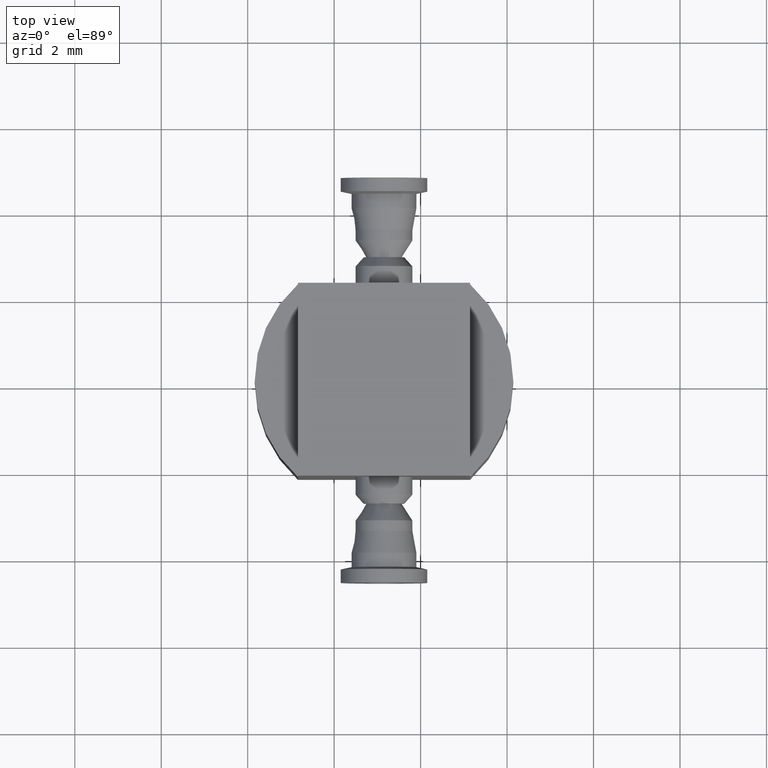
[diagram: clean part render]
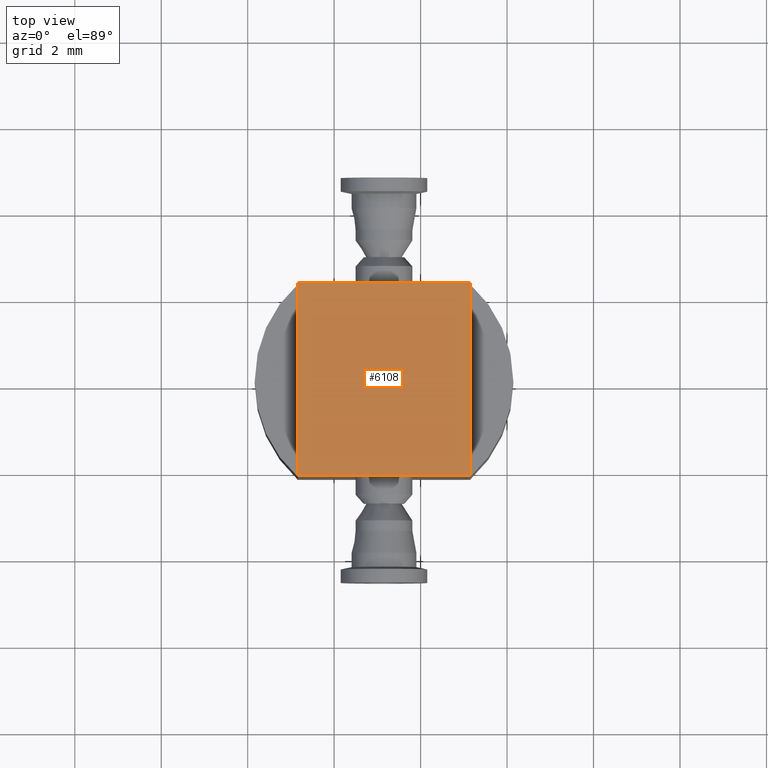
[diagram: same view with one face highlighted and labeled with its STEP entity id]
A machine part, top view. The second image highlights one B-rep face of the part: STEP entity #6108.
In plain terms, the highlighted planar face has unit normal (-0, 0, 1).
Its self-contained STEP definition (entity closure, byte-faithful):
#4220 = PLANE('',#4221);
#4221 = AXIS2_PLACEMENT_3D('',#4222,#4223,#4224);
#4222 = CARTESIAN_POINT('',(5.143106860388,3.108624468949E-15,
    11.578411163388));
#4223 = DIRECTION('',(1.,0.,0.));
#4224 = DIRECTION('',(-0.,1.,0.));
#4273 = PLANE('',#4274);
#4274 = AXIS2_PLACEMENT_3D('',#4275,#4276,#4277);
#4275 = CARTESIAN_POINT('',(1.163106860388,1.776356839398E-15,
    11.578411163388));
#4276 = DIRECTION('',(-1.,0.,0.));
#4277 = DIRECTION('',(0.,-1.,0.));
#5224 = PLANE('',#5225);
#5225 = AXIS2_PLACEMENT_3D('',#5226,#5227,#5228);
#5226 = CARTESIAN_POINT('',(3.153106860388,2.231591360442,
    11.578411163388));
#5227 = DIRECTION('',(-2.231604069598E-16,1.,0.));
#5228 = DIRECTION('',(1.,2.231604069598E-16,0.));
#5446 = PLANE('',#5447);
#5447 = AXIS2_PLACEMENT_3D('',#5448,#5449,#5450);
#5448 = CARTESIAN_POINT('',(3.153106860388,-2.231591360442,
    11.578411163388));
#5449 = DIRECTION('',(1.227382238279E-15,-1.,0.));
#5450 = DIRECTION('',(-1.,-1.227382238279E-15,0.));
#5899 = EDGE_CURVE('',#5900,#5902,#5904,.T.);
#5900 = VERTEX_POINT('',#5901);
#5901 = CARTESIAN_POINT('',(1.163106860388,-2.231591360442,
    13.458411163393));
#5902 = VERTEX_POINT('',#5903);
#5903 = CARTESIAN_POINT('',(1.163106860388,2.231591360442,
    13.458411163393));
#5904 = SURFACE_CURVE('',#5905,(#5909,#5916),.PCURVE_S1.);
#5905 = LINE('',#5906,#5907);
#5906 = CARTESIAN_POINT('',(1.163106860388,2.231591360442,
    13.458411163393));
#5907 = VECTOR('',#5908,1.);
#5908 = DIRECTION('',(0.,1.,0.));
#5909 = PCURVE('',#4273,#5910);
#5910 = DEFINITIONAL_REPRESENTATION('',(#5911),#5915);
#5911 = LINE('',#5912,#5913);
#5912 = CARTESIAN_POINT('',(-2.231591360442,1.880000000005));
#5913 = VECTOR('',#5914,1.);
#5914 = DIRECTION('',(-1.,0.));
#5915 = ( GEOMETRIC_REPRESENTATION_CONTEXT(2) 
PARAMETRIC_REPRESENTATION_CONTEXT() REPRESENTATION_CONTEXT('2D SPACE',''
  ) );
#5916 = PCURVE('',#5917,#5922);
#5917 = PLANE('',#5918);
#5918 = AXIS2_PLACEMENT_3D('',#5919,#5920,#5921);
#5919 = CARTESIAN_POINT('',(3.153106860388,2.664535259099E-15,
    13.458411163393));
#5920 = DIRECTION('',(-4.757069108965E-30,8.511356646873E-31,1.));
#5921 = DIRECTION('',(1.,0.,4.757069108965E-30));
#5922 = DEFINITIONAL_REPRESENTATION('',(#5923),#5927);
#5923 = LINE('',#5924,#5925);
#5924 = CARTESIAN_POINT('',(-1.99,2.231591360442));
#5925 = VECTOR('',#5926,1.);
#5926 = DIRECTION('',(0.,1.));
#5927 = ( GEOMETRIC_REPRESENTATION_CONTEXT(2) 
PARAMETRIC_REPRESENTATION_CONTEXT() REPRESENTATION_CONTEXT('2D SPACE',''
  ) );
#6012 = EDGE_CURVE('',#6013,#6015,#6017,.T.);
#6013 = VERTEX_POINT('',#6014);
#6014 = CARTESIAN_POINT('',(5.143106860388,2.231591360442,
    13.458411163393));
#6015 = VERTEX_POINT('',#6016);
#6016 = CARTESIAN_POINT('',(5.143106860388,-2.231591360442,
    13.458411163393));
#6017 = SURFACE_CURVE('',#6018,(#6022,#6029),.PCURVE_S1.);
#6018 = LINE('',#6019,#6020);
#6019 = CARTESIAN_POINT('',(5.143106860388,-2.231591360442,
    13.458411163393));
#6020 = VECTOR('',#6021,1.);
#6021 = DIRECTION('',(0.,-1.,0.));
#6022 = PCURVE('',#4220,#6023);
#6023 = DEFINITIONAL_REPRESENTATION('',(#6024),#6028);
#6024 = LINE('',#6025,#6026);
#6025 = CARTESIAN_POINT('',(-2.231591360442,1.880000000005));
#6026 = VECTOR('',#6027,1.);
#6027 = DIRECTION('',(-1.,0.));
#6028 = ( GEOMETRIC_REPRESENTATION_CONTEXT(2) 
PARAMETRIC_REPRESENTATION_CONTEXT() REPRESENTATION_CONTEXT('2D SPACE',''
  ) );
#6029 = PCURVE('',#5917,#6030);
#6030 = DEFINITIONAL_REPRESENTATION('',(#6031),#6035);
#6031 = LINE('',#6032,#6033);
#6032 = CARTESIAN_POINT('',(1.99,-2.231591360442));
#6033 = VECTOR('',#6034,1.);
#6034 = DIRECTION('',(0.,-1.));
#6035 = ( GEOMETRIC_REPRESENTATION_CONTEXT(2) 
PARAMETRIC_REPRESENTATION_CONTEXT() REPRESENTATION_CONTEXT('2D SPACE',''
  ) );
#6108 = ADVANCED_FACE('',(#6109),#5917,.T.);
#6109 = FACE_BOUND('',#6110,.T.);
#6110 = EDGE_LOOP('',(#6111,#6132,#6133,#6154));
#6111 = ORIENTED_EDGE('',*,*,#6112,.F.);
#6112 = EDGE_CURVE('',#6015,#5900,#6113,.T.);
#6113 = SURFACE_CURVE('',#6114,(#6118,#6125),.PCURVE_S1.);
#6114 = LINE('',#6115,#6116);
#6115 = CARTESIAN_POINT('',(1.163106860388,-2.231591360442,
    13.458411163393));
#6116 = VECTOR('',#6117,1.);
#6117 = DIRECTION('',(-1.,-6.694812208795E-16,0.));
#6118 = PCURVE('',#5917,#6119);
#6119 = DEFINITIONAL_REPRESENTATION('',(#6120),#6124);
#6120 = LINE('',#6121,#6122);
#6121 = CARTESIAN_POINT('',(-1.99,-2.231591360442));
#6122 = VECTOR('',#6123,1.);
#6123 = DIRECTION('',(-1.,-6.694812208795E-16));
#6124 = ( GEOMETRIC_REPRESENTATION_CONTEXT(2) 
PARAMETRIC_REPRESENTATION_CONTEXT() REPRESENTATION_CONTEXT('2D SPACE',''
  ) );
#6125 = PCURVE('',#5446,#6126);
#6126 = DEFINITIONAL_REPRESENTATION('',(#6127),#6131);
#6127 = LINE('',#6128,#6129);
#6128 = CARTESIAN_POINT('',(1.99,-1.880000000005));
#6129 = VECTOR('',#6130,1.);
#6130 = DIRECTION('',(1.,0.));
#6131 = ( GEOMETRIC_REPRESENTATION_CONTEXT(2) 
PARAMETRIC_REPRESENTATION_CONTEXT() REPRESENTATION_CONTEXT('2D SPACE',''
  ) );
#6132 = ORIENTED_EDGE('',*,*,#6012,.F.);
#6133 = ORIENTED_EDGE('',*,*,#6134,.F.);
#6134 = EDGE_CURVE('',#5902,#6013,#6135,.T.);
#6135 = SURFACE_CURVE('',#6136,(#6140,#6147),.PCURVE_S1.);
#6136 = LINE('',#6137,#6138);
#6137 = CARTESIAN_POINT('',(5.143106860388,2.231591360442,
    13.458411163393));
#6138 = VECTOR('',#6139,1.);
#6139 = DIRECTION('',(1.,0.,0.));
#6140 = PCURVE('',#5917,#6141);
#6141 = DEFINITIONAL_REPRESENTATION('',(#6142),#6146);
#6142 = LINE('',#6143,#6144);
#6143 = CARTESIAN_POINT('',(1.99,2.231591360442));
#6144 = VECTOR('',#6145,1.);
#6145 = DIRECTION('',(1.,4.048911178022E-60));
#6146 = ( GEOMETRIC_REPRESENTATION_CONTEXT(2) 
PARAMETRIC_REPRESENTATION_CONTEXT() REPRESENTATION_CONTEXT('2D SPACE',''
  ) );
#6147 = PCURVE('',#5224,#6148);
#6148 = DEFINITIONAL_REPRESENTATION('',(#6149),#6153);
#6149 = LINE('',#6150,#6151);
#6150 = CARTESIAN_POINT('',(1.99,-1.880000000005));
#6151 = VECTOR('',#6152,1.);
#6152 = DIRECTION('',(1.,0.));
#6153 = ( GEOMETRIC_REPRESENTATION_CONTEXT(2) 
PARAMETRIC_REPRESENTATION_CONTEXT() REPRESENTATION_CONTEXT('2D SPACE',''
  ) );
#6154 = ORIENTED_EDGE('',*,*,#5899,.F.);